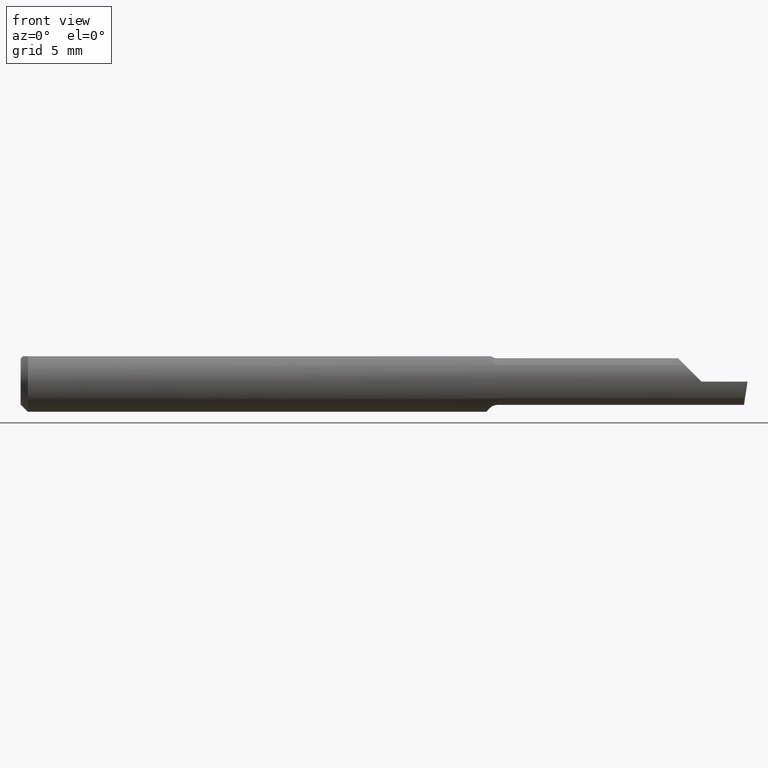
[diagram: clean part render]
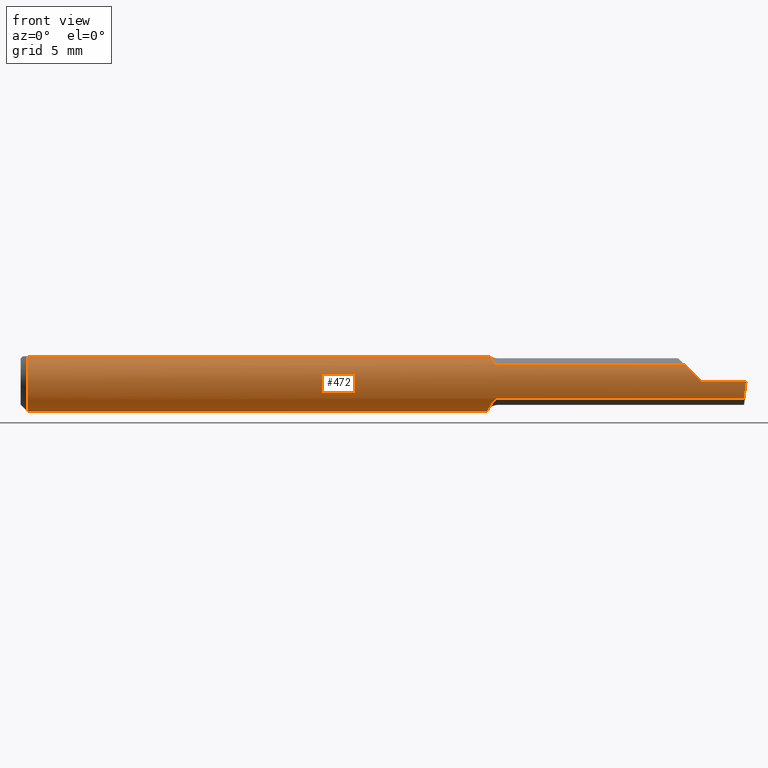
[diagram: same view with one face highlighted and labeled with its STEP entity id]
A machine part, front view. The second image highlights one B-rep face of the part: STEP entity #472.
In plain terms, the highlighted cylindrical surface (edge-blend (fillet) strip) has radius 1.5837 mm, axis along (-1, -0, -0).
Its self-contained STEP definition (entity closure, byte-faithful):
#11 = ORIENTED_EDGE ( 'NONE', *, *, #140, .F. ) ;
#15 = DIRECTION ( 'NONE',  ( 1.000000000000000000, 0.0000000000000000000, 0.0000000000000000000 ) ) ;
#16 = CARTESIAN_POINT ( 'NONE',  ( 0.9639435274990673097, -0.01839999999999995459, -0.05957316929625284391 ) ) ;
#17 = VECTOR ( 'NONE', #15, 39.37007874015748143 ) ;
#18 = CARTESIAN_POINT ( 'NONE',  ( 0.9656294582975117891, -0.02606820000987080180, -0.05677892429946721636 ) ) ;
#20 = CARTESIAN_POINT ( 'NONE',  ( 1.405000000000000249, -0.06235000000000005121, 1.163414459189982046E-17 ) ) ;
#21 = CARTESIAN_POINT ( 'NONE',  ( 0.0000000000000000000, -0.03386738844375222768, 0.05234999999999997988 ) ) ;
#22 = CARTESIAN_POINT ( 'NONE',  ( 0.9850000000000000977, -0.05210000000000009068, 0.03425072991922929050 ) ) ;
#32 = CARTESIAN_POINT ( 'NONE',  ( 1.493233423732482024, -0.05210000000000007681, -0.03425072991922935295 ) ) ;
#38 = CARTESIAN_POINT ( 'NONE',  ( 0.9681439896686973023, -0.03386738844377056717, 0.05235000000000000070 ) ) ;
#39 = ORIENTED_EDGE ( 'NONE', *, *, #181, .F. ) ;
#40 = VERTEX_POINT ( 'NONE', #197 ) ;
#44 = DIRECTION ( 'NONE',  ( -1.000000000000000000, -0.0000000000000000000, -0.0000000000000000000 ) ) ;
#45 = VERTEX_POINT ( 'NONE', #22 ) ;
#50 = FACE_OUTER_BOUND ( 'NONE', #169, .T. ) ;
#51 = LINE ( 'NONE', #463, #17 ) ;
#53 = VERTEX_POINT ( 'NONE', #676 ) ;
#54 = EDGE_CURVE ( 'NONE', #224, #629, #122, .T. ) ;
#77 = CARTESIAN_POINT ( 'NONE',  ( 0.9690023436943706603, -0.03635371779854203872, -0.05080473676934862959 ) ) ;
#84 = VERTEX_POINT ( 'NONE', #464 ) ;
#88 = CARTESIAN_POINT ( 'NONE',  ( 0.01500000000000185039, -0.03386738844380016850, 0.05235000000000000070 ) ) ;
#90 =( BOUNDED_CURVE ( )  B_SPLINE_CURVE ( 3, ( #20, #567, #136, #354 ),
 .UNSPECIFIED., .F., .F. ) 
 B_SPLINE_CURVE_WITH_KNOTS ( ( 4, 4 ),
 ( 4.712388980384689674, 5.293951277779025411 ),
 .UNSPECIFIED. ) 
 CURVE ( )  GEOMETRIC_REPRESENTATION_ITEM ( )  RATIONAL_B_SPLINE_CURVE ( ( 1.000000000000000000, 0.9720134746468970244, 0.9720134746468970244, 1.000000000000000000 ) ) 
 REPRESENTATION_ITEM ( '' )  );
#91 = EDGE_CURVE ( 'NONE', #289, #40, #90, .T. ) ;
#94 = CARTESIAN_POINT ( 'NONE',  ( 1.405000000000000249, -0.06235000000000005121, 1.163414459189982046E-17 ) ) ;
#99 = CARTESIAN_POINT ( 'NONE',  ( 1.495666027076596238, -0.06235000000000000958, -0.01226031473995683498 ) ) ;
#122 = CIRCLE ( 'NONE', #562, 0.06235000000000000264 ) ;
#127 = CARTESIAN_POINT ( 'NONE',  ( 0.9768557543361661155, -0.04856891343705597303, -0.03913748562448250701 ) ) ;
#129 = CARTESIAN_POINT ( 'NONE',  ( 0.01500000000000000465, 0.0000000000000000000, 0.0000000000000000000 ) ) ;
#136 = CARTESIAN_POINT ( 'NONE',  ( 1.380994055934046782, -0.05883495956508443675, 0.02400594406595336905 ) ) ;
#137 = CARTESIAN_POINT ( 'NONE',  ( 0.9719606783407127581, -0.04239780856895213057, -0.04588180363204267392 ) ) ;
#138 = CARTESIAN_POINT ( 'NONE',  ( 0.9623860608652277104, -0.01052139226165770339, -0.06200658662318050268 ) ) ;
#140 = EDGE_CURVE ( 'NONE', #417, #224, #530, .T. ) ;
#145 = VECTOR ( 'NONE', #518, 39.37007874015748143 ) ;
#154 = CARTESIAN_POINT ( 'NONE',  ( 2.249639673992775738E-32, -0.06234999999999999570, 1.836970198721025250E-16 ) ) ;
#160 = EDGE_CURVE ( 'NONE', #45, #40, #51, .T. ) ;
#168 = CARTESIAN_POINT ( 'NONE',  ( 0.9766024100878112346, -0.04843664215652592614, 0.03931692004732156853 ) ) ;
#169 = EDGE_LOOP ( 'NONE', ( #218, #276, #515, #391, #446, #405, #434, #357, #11, #310, #251, #260, #39 ) ) ;
#177 = AXIS2_PLACEMENT_3D ( 'NONE', #634, #467, #692 ) ;
#181 = EDGE_CURVE ( 'NONE', #53, #469, #606, .T. ) ;
#194 = CARTESIAN_POINT ( 'NONE',  ( 0.9599999999999999645, 0.02282614954852000763, -0.05862499217990970596 ) ) ;
#197 = CARTESIAN_POINT ( 'NONE',  ( 1.370749270080770632, -0.05210000000000013232, 0.03425072991922928356 ) ) ;
#198 = CARTESIAN_POINT ( 'NONE',  ( 0.9600000000000001865, 0.03016902173913024385, -0.05456512281030700268 ) ) ;
#207 = VECTOR ( 'NONE', #505, 39.37007874015748143 ) ;
#218 = ORIENTED_EDGE ( 'NONE', *, *, #511, .F. ) ;
#223 = CARTESIAN_POINT ( 'NONE',  ( 0.0000000000000000000, 0.0000000000000000000, 0.0000000000000000000 ) ) ;
#224 = VERTEX_POINT ( 'NONE', #317 ) ;
#250 = CARTESIAN_POINT ( 'NONE',  ( 0.9810018602471947124, -0.05138041438525052518, -0.03535223831097217967 ) ) ;
#251 = ORIENTED_EDGE ( 'NONE', *, *, #280, .F. ) ;
#260 = ORIENTED_EDGE ( 'NONE', *, *, #631, .F. ) ;
#263 = CARTESIAN_POINT ( 'NONE',  ( 0.9681439896686973023, -0.03386738844377056717, 0.05235000000000000070 ) ) ;
#266 = CARTESIAN_POINT ( 'NONE',  ( 0.9639435274990673097, -0.01839999999999995459, -0.05957316929625284391 ) ) ;
#270 = CARTESIAN_POINT ( 'NONE',  ( 0.9836283801985743480, -0.05210000000115980190, 0.03425072991746576367 ) ) ;
#275 = B_SPLINE_CURVE_WITH_KNOTS ( 'NONE', 3,
 ( #300, #138, #677, #622, #194, #198 ),
 .UNSPECIFIED., .F., .F.,
 ( 4, 2, 4 ),
 ( 0.001277683611626133364, 0.001926233481642344782, 0.002574783351658556201 ),
 .UNSPECIFIED. ) ;
#276 = ORIENTED_EDGE ( 'NONE', *, *, #369, .T. ) ;
#279 = CARTESIAN_POINT ( 'NONE',  ( 1.494315395341277553, -0.05883495956508440899, -0.02400594406595344885 ) ) ;
#280 = EDGE_CURVE ( 'NONE', #649, #321, #493, .T. ) ;
#289 = VERTEX_POINT ( 'NONE', #94 ) ;
#291 = CARTESIAN_POINT ( 'NONE',  ( 1.199999999999999956, -0.05210000000000007681, -0.03425072991922935295 ) ) ;
#292 = LINE ( 'NONE', #21, #601 ) ;
#300 = CARTESIAN_POINT ( 'NONE',  ( 0.9639435274990673097, -0.01839999999999995459, -0.05957316929625284391 ) ) ;
#306 = DIRECTION ( 'NONE',  ( 0.0000000000000000000, 0.0000000000000000000, 1.000000000000000000 ) ) ;
#310 = ORIENTED_EDGE ( 'NONE', *, *, #557, .T. ) ;
#317 = CARTESIAN_POINT ( 'NONE',  ( 0.01500000000000000465, 0.0000000000000000000, -0.06235000000000000264 ) ) ;
#321 = VERTEX_POINT ( 'NONE', #419 ) ;
#329 = EDGE_CURVE ( 'NONE', #671, #45, #498, .T. ) ;
#338 = AXIS2_PLACEMENT_3D ( 'NONE', #129, #623, #306 ) ;
#345 = VECTOR ( 'NONE', #646, 39.37007874015748143 ) ;
#348 = CARTESIAN_POINT ( 'NONE',  ( 0.9647104858884212319, -0.02227973916747848573, -0.05837485801745211783 ) ) ;
#351 = CARTESIAN_POINT ( 'NONE',  ( 0.9677747305127012423, -0.03308328010062950436, -0.05299899880320899787 ) ) ;
#352 = CARTESIAN_POINT ( 'NONE',  ( 0.01500000000000000465, 0.0000000000000000000, 0.0000000000000000000 ) ) ;
#354 = CARTESIAN_POINT ( 'NONE',  ( 1.370749270080770632, -0.05210000000000013232, 0.03425072991922928356 ) ) ;
#357 = ORIENTED_EDGE ( 'NONE', *, *, #54, .F. ) ;
#363 =( BOUNDED_CURVE ( )  B_SPLINE_CURVE ( 3, ( #32, #279, #99, #385 ),
 .UNSPECIFIED., .F., .T. ) 
 B_SPLINE_CURVE_WITH_KNOTS ( ( 4, 4 ),
 ( 0.7791845851203680340, 1.360746882514706213 ),
 .UNSPECIFIED. ) 
 CURVE ( )  GEOMETRIC_REPRESENTATION_ITEM ( )  RATIONAL_B_SPLINE_CURVE ( ( 1.000000000000000000, 0.9720134746468966913, 0.9720134746468966913, 1.000000000000000000 ) ) 
 REPRESENTATION_ITEM ( '' )  );
#369 = EDGE_CURVE ( 'NONE', #84, #672, #363, .T. ) ;
#385 = CARTESIAN_POINT ( 'NONE',  ( 1.497171920470529161, -0.06235000000000005121, 3.552677088412748576E-19 ) ) ;
#391 = ORIENTED_EDGE ( 'NONE', *, *, #91, .T. ) ;
#400 = CARTESIAN_POINT ( 'NONE',  ( 0.9600000000000001865, 0.03016902173913024385, -0.05456512281030700268 ) ) ;
#405 = ORIENTED_EDGE ( 'NONE', *, *, #329, .F. ) ;
#409 = CARTESIAN_POINT ( 'NONE',  ( 0.9736313994831701235, -0.04510599191766692662, -0.04319271381807381766 ) ) ;
#417 = VERTEX_POINT ( 'NONE', #485 ) ;
#419 = CARTESIAN_POINT ( 'NONE',  ( 0.9600000000000001865, 0.03386738844375224156, 0.05235000000000000070 ) ) ;
#422 = CARTESIAN_POINT ( 'NONE',  ( 0.9697417421283762717, -0.03819491529868387220, 0.04955034320923033808 ) ) ;
#423 = LINE ( 'NONE', #291, #207 ) ;
#434 = ORIENTED_EDGE ( 'NONE', *, *, #581, .T. ) ;
#437 = EDGE_CURVE ( 'NONE', #672, #289, #637, .T. ) ;
#446 = ORIENTED_EDGE ( 'NONE', *, *, #160, .F. ) ;
#452 = CARTESIAN_POINT ( 'NONE',  ( 0.9850000000000000977, -0.05210000000000011150, -0.03425072991922927662 ) ) ;
#463 = CARTESIAN_POINT ( 'NONE',  ( 1.199999999999999956, -0.05210000000000007681, 0.03425072991922935295 ) ) ;
#464 = CARTESIAN_POINT ( 'NONE',  ( 1.493233423732482024, -0.05210000000000007681, -0.03425072991922935295 ) ) ;
#467 = DIRECTION ( 'NONE',  ( 1.000000000000000000, 0.0000000000000000000, 0.0000000000000000000 ) ) ;
#469 = VERTEX_POINT ( 'NONE', #266 ) ;
#472 = ADVANCED_FACE ( 'NONE', ( #50 ), #476, .T. ) ;
#476 = CYLINDRICAL_SURFACE ( 'NONE', #496, 0.06235000000000000264 ) ;
#483 = CARTESIAN_POINT ( 'NONE',  ( 1.497171920470529161, -0.06235000000000005121, 3.552677088412748576E-19 ) ) ;
#485 = CARTESIAN_POINT ( 'NONE',  ( 0.01500000000000000465, 0.03386738844375223462, 0.05234999999999997988 ) ) ;
#493 = CIRCLE ( 'NONE', #177, 0.06235000000000000264 ) ;
#496 = AXIS2_PLACEMENT_3D ( 'NONE', #223, #44, #589 ) ;
#497 = CARTESIAN_POINT ( 'NONE',  ( 0.9752324438157199404, -0.04692169178955603315, 0.04112849538229048502 ) ) ;
#498 = B_SPLINE_CURVE_WITH_KNOTS ( 'NONE', 3,
 ( #38, #422, #576, #497, #168, #654, #547, #712, #270, #701 ),
 .UNSPECIFIED., .F., .F.,
 ( 4, 2, 2, 2, 4 ),
 ( 3.799952872692126052E-07, 0.0004056523638566300453, 0.0006082885481413102422, 0.0007096066402836536747, 0.0008109247324259971071 ),
 .UNSPECIFIED. ) ;
#505 = DIRECTION ( 'NONE',  ( -1.000000000000000000, -0.0000000000000000000, -0.0000000000000000000 ) ) ;
#511 = EDGE_CURVE ( 'NONE', #84, #53, #423, .T. ) ;
#515 = ORIENTED_EDGE ( 'NONE', *, *, #437, .T. ) ;
#518 = DIRECTION ( 'NONE',  ( 1.000000000000000000, 0.0000000000000000000, 0.0000000000000000000 ) ) ;
#530 = CIRCLE ( 'NONE', #338, 0.06235000000000000264 ) ;
#547 = CARTESIAN_POINT ( 'NONE',  ( 0.9801117046627794149, -0.05090166660896883882, 0.03601608024180046747 ) ) ;
#557 = EDGE_CURVE ( 'NONE', #417, #321, #697, .T. ) ;
#562 = AXIS2_PLACEMENT_3D ( 'NONE', #352, #621, #619 ) ;
#567 = CARTESIAN_POINT ( 'NONE',  ( 1.392739685260043325, -0.06235000000000000264, 0.01226031473995679161 ) ) ;
#576 = CARTESIAN_POINT ( 'NONE',  ( 0.9715797100125446173, -0.04200879032723223855, 0.04631940421101467947 ) ) ;
#581 = EDGE_CURVE ( 'NONE', #671, #629, #292, .T. ) ;
#589 = DIRECTION ( 'NONE',  ( 0.0000000000000000000, 0.0000000000000000000, 1.000000000000000000 ) ) ;
#601 = VECTOR ( 'NONE', #686, 39.37007874015748143 ) ;
#606 = B_SPLINE_CURVE_WITH_KNOTS ( 'NONE', 3,
 ( #452, #612, #250, #620, #127, #409, #137, #77, #351, #18, #348, #16 ),
 .UNSPECIFIED., .F., .F.,
 ( 4, 2, 2, 2, 2, 4 ),
 ( 1.968188672663559467E-07, 0.0001598826679621269333, 0.0003195685170569875040, 0.0006389402152467027907, 0.0009583119134364181859, 0.001277683611626133364 ),
 .UNSPECIFIED. ) ;
#612 = CARTESIAN_POINT ( 'NONE',  ( 0.9828708008506147342, -0.05210000000000012538, -0.03425072991922926968 ) ) ;
#619 = DIRECTION ( 'NONE',  ( 0.0000000000000000000, 0.0000000000000000000, 1.000000000000000000 ) ) ;
#620 = CARTESIAN_POINT ( 'NONE',  ( 0.9780636144450135516, -0.04963912592730903434, -0.03775824298307036558 ) ) ;
#621 = DIRECTION ( 'NONE',  ( -1.000000000000000000, -0.0000000000000000000, -0.0000000000000000000 ) ) ;
#622 = CARTESIAN_POINT ( 'NONE',  ( 0.9602082692914427620, 0.01460127996857734853, -0.06118787137580497526 ) ) ;
#623 = DIRECTION ( 'NONE',  ( -1.000000000000000000, -0.0000000000000000000, -0.0000000000000000000 ) ) ;
#629 = VERTEX_POINT ( 'NONE', #88 ) ;
#631 = EDGE_CURVE ( 'NONE', #469, #649, #275, .T. ) ;
#634 = CARTESIAN_POINT ( 'NONE',  ( 0.9600000000000001865, 0.0000000000000000000, 0.0000000000000000000 ) ) ;
#637 = LINE ( 'NONE', #154, #345 ) ;
#646 = DIRECTION ( 'NONE',  ( -1.000000000000000000, -0.0000000000000000000, -0.0000000000000000000 ) ) ;
#649 = VERTEX_POINT ( 'NONE', #400 ) ;
#654 = CARTESIAN_POINT ( 'NONE',  ( 0.9791789796355747644, -0.05033758282015995261, 0.03680695256572111967 ) ) ;
#666 = CARTESIAN_POINT ( 'NONE',  ( 0.0000000000000000000, 0.03386738844375223462, 0.05234999999999997988 ) ) ;
#671 = VERTEX_POINT ( 'NONE', #263 ) ;
#672 = VERTEX_POINT ( 'NONE', #483 ) ;
#676 = CARTESIAN_POINT ( 'NONE',  ( 0.9850000000000000977, -0.05210000000000011150, -0.03425072991922927662 ) ) ;
#677 = CARTESIAN_POINT ( 'NONE',  ( 0.9613962500143420353, -0.002002297547419323084, -0.06287403108402092600 ) ) ;
#686 = DIRECTION ( 'NONE',  ( -1.000000000000000000, -0.0000000000000000000, -0.0000000000000000000 ) ) ;
#692 = DIRECTION ( 'NONE',  ( 0.0000000000000000000, 0.0000000000000000000, -1.000000000000000000 ) ) ;
#697 = LINE ( 'NONE', #666, #145 ) ;
#701 = CARTESIAN_POINT ( 'NONE',  ( 0.9850000000000000977, -0.05210000000000009068, 0.03425072991922929050 ) ) ;
#712 = CARTESIAN_POINT ( 'NONE',  ( 0.9823254665516394368, -0.05179156103573025194, 0.03472422648579306936 ) ) ;